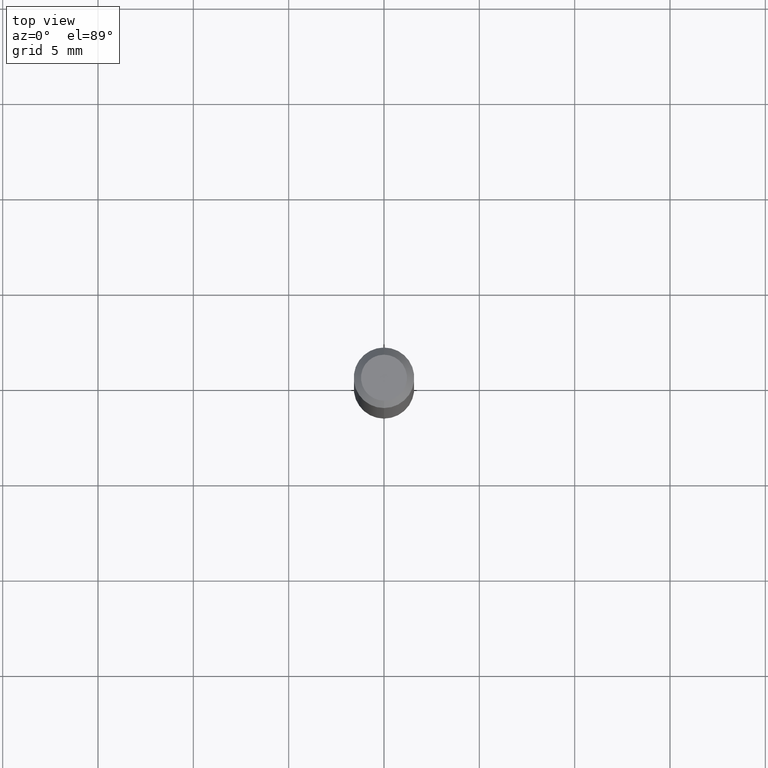
[diagram: clean part render]
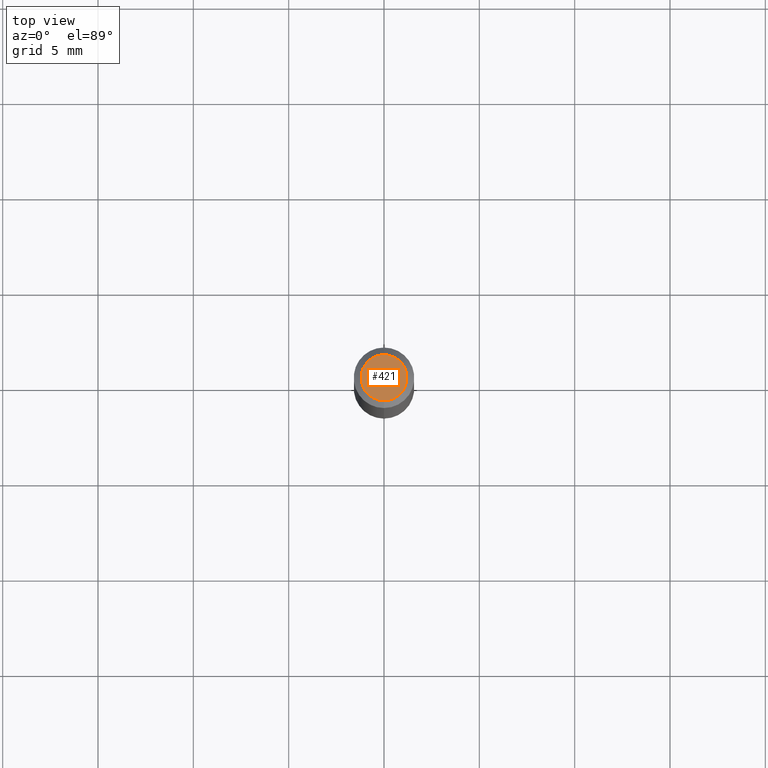
[diagram: same view with one face highlighted and labeled with its STEP entity id]
A machine part, top view. The second image highlights one B-rep face of the part: STEP entity #421.
In plain terms, the highlighted planar face has unit normal (0, -0, -1).
Its self-contained STEP definition (entity closure, byte-faithful):
#15 = CARTESIAN_POINT ( 'NONE',  ( 2.166554953746813658E-46, -3.093296437413737075E-32, -8.859509859609890847E-18 ) ) ;
#33 = DIRECTION ( 'NONE',  ( 6.982962677686265922E-15, 1.000000000000000000, -3.491498385837276780E-15 ) ) ;
#61 = EDGE_LOOP ( 'NONE', ( #130, #387 ) ) ;
#96 = CARTESIAN_POINT ( 'NONE',  ( 3.840629472727447874E-16, 0.04749999999999999362, -1.747056831868805136E-16 ) ) ;
#119 = CARTESIAN_POINT ( 'NONE',  ( -3.773273898774340269E-16, -0.04749999999999999362, 1.569866634676607381E-16 ) ) ;
#130 = ORIENTED_EDGE ( 'NONE', *, *, #292, .T. ) ;
#140 = CIRCLE ( 'NONE', #320, 0.04749999999999999362 ) ;
#152 = EDGE_CURVE ( 'NONE', #497, #174, #140, .T. ) ;
#174 = VERTEX_POINT ( 'NONE', #96 ) ;
#185 = CARTESIAN_POINT ( 'NONE',  ( 3.316907271900976096E-16, 0.04749999999999999362, -1.702759282570755759E-16 ) ) ;
#221 = PLANE ( 'NONE',  #486 ) ;
#239 = CIRCLE ( 'NONE', #405, 0.04749999999999999362 ) ;
#292 = EDGE_CURVE ( 'NONE', #174, #497, #239, .T. ) ;
#310 = DIRECTION ( 'NONE',  ( -2.445456902332758326E-29, 3.491498385837276386E-15, 1.000000000000000000 ) ) ;
#320 = AXIS2_PLACEMENT_3D ( 'NONE', #15, #491, #413 ) ;
#354 = DIRECTION ( 'NONE',  ( 2.445456902332757765E-29, -3.491498385837276780E-15, -1.000000000000000000 ) ) ;
#387 = ORIENTED_EDGE ( 'NONE', *, *, #152, .T. ) ;
#393 = CARTESIAN_POINT ( 'NONE',  ( 2.166554953746813658E-46, -3.093296437413737075E-32, -8.859509859609890847E-18 ) ) ;
#405 = AXIS2_PLACEMENT_3D ( 'NONE', #393, #310, #471 ) ;
#413 = DIRECTION ( 'NONE',  ( -6.982962677686266711E-15, -1.000000000000000000, 3.491498385837276386E-15 ) ) ;
#421 = ADVANCED_FACE ( 'NONE', ( #426 ), #221, .F. ) ;
#426 = FACE_OUTER_BOUND ( 'NONE', #61, .T. ) ;
#471 = DIRECTION ( 'NONE',  ( -6.982962677686266711E-15, -1.000000000000000000, 3.491498385837276386E-15 ) ) ;
#486 = AXIS2_PLACEMENT_3D ( 'NONE', #185, #354, #33 ) ;
#491 = DIRECTION ( 'NONE',  ( -2.445456902332758326E-29, 3.491498385837276386E-15, 1.000000000000000000 ) ) ;
#497 = VERTEX_POINT ( 'NONE', #119 ) ;